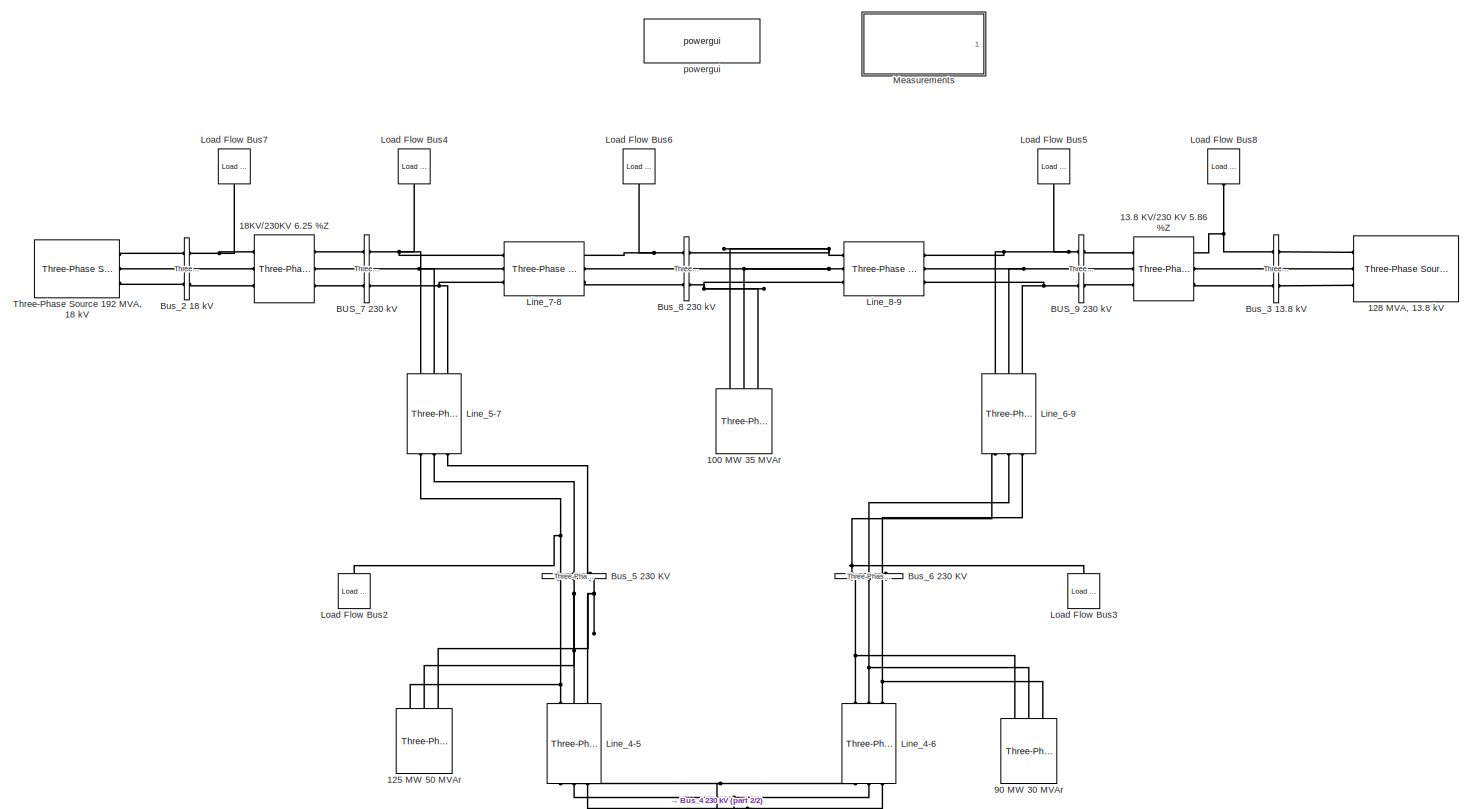
[diagram: root canvas - part 1/2, full width, middle band]
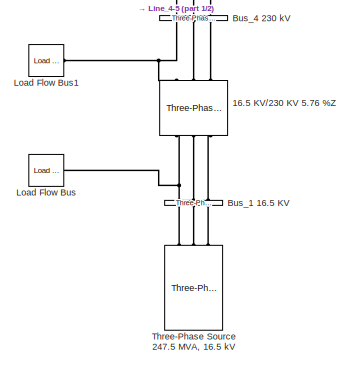
[diagram: root canvas - part 2/2, bottom center region]
MODEL slx_2a285159fcff
KIND model
CONFIG AbsTol = auto
CONFIG EnableMultiTasking = on
CONFIG FixedStep = Ts
CONFIG InitFcn = Ts=50e-6;
CONFIG MaxStep = auto
CONFIG MinStep = auto
CONFIG RelTol = 1e-3
CONFIG SampleTimeConstraint = Unconstrained
CONFIG Solver = ode3
CONFIG SolverName = ode3
CONFIG StartTime = 0.0
CONFIG StopTime = 5
BLOCK [Reference] 100 MW 35 MVAr  REF=powerlib/Elements/Three-Phase
Parallel RLC Load
  AttributesFormatString = \n
  Ports = [0, 0, 0, 0, 0, 3]
  SourceBlock = powerlib/Elements/Three-Phase\nParallel RLC Load
  SourceProductBaseCode = PS
  SourceProductName = Simscape Power Systems
  SourceType = Three-Phase Parallel RLC Load
BLOCK [Reference] 125 MW 50 MVAr  REF=powerlib/Elements/Three-Phase
Parallel RLC Load
  AttributesFormatString = \n
  Ports = [0, 0, 0, 0, 0, 3]
  SourceBlock = powerlib/Elements/Three-Phase\nParallel RLC Load
  SourceProductBaseCode = PS
  SourceProductName = Simscape Power Systems
  SourceType = Three-Phase Parallel RLC Load
BLOCK [Reference] 128 MVA, 13.8 kV  REF=powerlib/Electrical
Sources/Three-Phase Source
  Ports = [0, 0, 0, 0, 0, 0, 3]
  SourceBlock = powerlib/Electrical\nSources/Three-Phase Source
  SourceProductBaseCode = PS
  SourceProductName = Simscape Power Systems
  SourceType = Three-Phase Source
BLOCK [Reference] 13.8 KV//230 KV 5.86 %Z  REF=powerlib/Elements/Three-Phase
Transformer
(Two Windings)
  Ports = [0, 0, 0, 0, 0, 3, 3]
  SourceBlock = powerlib/Elements/Three-Phase\nTransformer\n(Two Windings)
  SourceProductBaseCode = PS
  SourceProductName = Simscape Power Systems
  SourceType = Three-Phase Transformer (Two Windings)
BLOCK [Reference] 16.5 KV//230 KV 5.76 %Z       REF=powerlib/Elements/Three-Phase
Transformer
(Two Windings)
  Ports = [0, 0, 0, 0, 0, 3, 3]
  SourceBlock = powerlib/Elements/Three-Phase\nTransformer\n(Two Windings)
  SourceProductBaseCode = PS
  SourceProductName = Simscape Power Systems
  SourceType = Three-Phase Transformer (Two Windings)
BLOCK [Reference] 18KV//230KV 6.25 %Z  REF=powerlib/Elements/Three-Phase
Transformer
(Two Windings)
  Ports = [0, 0, 0, 0, 0, 3, 3]
  SourceBlock = powerlib/Elements/Three-Phase\nTransformer\n(Two Windings)
  SourceProductBaseCode = PS
  SourceProductName = Simscape Power Systems
  SourceType = Three-Phase Transformer (Two Windings)
BLOCK [Reference] 90 MW 30 MVAr  REF=powerlib/Elements/Three-Phase
Parallel RLC Load
  AttributesFormatString = \n
  Ports = [0, 0, 0, 0, 0, 3]
  SourceBlock = powerlib/Elements/Three-Phase\nParallel RLC Load
  SourceProductBaseCode = PS
  SourceProductName = Simscape Power Systems
  SourceType = Three-Phase Parallel RLC Load
BLOCK [Reference] BUS_7 230 kV  REF=powerlib/Measurements/Three-Phase
V-I Measurement
  Ports = [0, 0, 0, 0, 0, 3, 3]
  SourceBlock = powerlib/Measurements/Three-Phase\nV-I Measurement
  SourceProductBaseCode = PS
  SourceProductName = Simscape Power Systems
  SourceType = Three-Phase VI Measurement
BLOCK [Reference] BUS_9 230 kV  REF=powerlib/Measurements/Three-Phase
V-I Measurement
  Ports = [0, 0, 0, 0, 0, 3, 3]
  SourceBlock = powerlib/Measurements/Three-Phase\nV-I Measurement
  SourceProductBaseCode = PS
  SourceProductName = Simscape Power Systems
  SourceType = Three-Phase VI Measurement
BLOCK [Reference] Bus_1 16.5 KV  REF=powerlib/Measurements/Three-Phase
V-I Measurement
  Ports = [0, 0, 0, 0, 0, 3, 3]
  SourceBlock = powerlib/Measurements/Three-Phase\nV-I Measurement
  SourceProductBaseCode = PS
  SourceProductName = Simscape Power Systems
  SourceType = Three-Phase VI Measurement
BLOCK [Reference] Bus_2 18 kV  REF=powerlib/Measurements/Three-Phase
V-I Measurement
  Ports = [0, 0, 0, 0, 0, 3, 3]
  SourceBlock = powerlib/Measurements/Three-Phase\nV-I Measurement
  SourceProductBaseCode = PS
  SourceProductName = Simscape Power Systems
  SourceType = Three-Phase VI Measurement
BLOCK [Reference] Bus_3 13.8 kV  REF=powerlib/Measurements/Three-Phase
V-I Measurement
  Ports = [0, 0, 0, 0, 0, 3, 3]
  SourceBlock = powerlib/Measurements/Three-Phase\nV-I Measurement
  SourceProductBaseCode = PS
  SourceProductName = Simscape Power Systems
  SourceType = Three-Phase VI Measurement
BLOCK [Reference] Bus_4 230 kV  REF=powerlib/Measurements/Three-Phase
V-I Measurement
  Ports = [0, 0, 0, 0, 0, 3, 3]
  SourceBlock = powerlib/Measurements/Three-Phase\nV-I Measurement
  SourceProductBaseCode = PS
  SourceProductName = Simscape Power Systems
  SourceType = Three-Phase VI Measurement
BLOCK [Reference] Bus_5 230 KV  REF=powerlib/Measurements/Three-Phase
V-I Measurement
  Ports = [0, 0, 0, 0, 0, 3, 3]
  SourceBlock = powerlib/Measurements/Three-Phase\nV-I Measurement
  SourceProductBaseCode = PS
  SourceProductName = Simscape Power Systems
  SourceType = Three-Phase VI Measurement
BLOCK [Reference] Bus_6 230 KV  REF=powerlib/Measurements/Three-Phase
V-I Measurement
  Ports = [0, 0, 0, 0, 0, 3, 3]
  SourceBlock = powerlib/Measurements/Three-Phase\nV-I Measurement
  SourceProductBaseCode = PS
  SourceProductName = Simscape Power Systems
  SourceType = Three-Phase VI Measurement
BLOCK [Reference] Bus_8 230 kV  REF=powerlib/Measurements/Three-Phase
V-I Measurement
  Ports = [0, 0, 0, 0, 0, 3, 3]
  SourceBlock = powerlib/Measurements/Three-Phase\nV-I Measurement
  SourceProductBaseCode = PS
  SourceProductName = Simscape Power Systems
  SourceType = Three-Phase VI Measurement
BLOCK [Reference] Line_4-5  REF=powerlib/Elements/Three-Phase
PI Section Line
  AttributesFormatString = \n
  Ports = [0, 0, 0, 0, 0, 3, 3]
  SourceBlock = powerlib/Elements/Three-Phase\nPI Section Line
  SourceProductBaseCode = PS
  SourceProductName = Simscape Power Systems
  SourceType = Three-Phase PI Section Line
BLOCK [Reference] Line_4-6  REF=powerlib/Elements/Three-Phase
PI Section Line
  AttributesFormatString = \n
  Ports = [0, 0, 0, 0, 0, 3, 3]
  SourceBlock = powerlib/Elements/Three-Phase\nPI Section Line
  SourceProductBaseCode = PS
  SourceProductName = Simscape Power Systems
  SourceType = Three-Phase PI Section Line
BLOCK [Reference] Line_5-7  REF=powerlib/Elements/Three-Phase
PI Section Line
  AttributesFormatString = \n
  Ports = [0, 0, 0, 0, 0, 3, 3]
  SourceBlock = powerlib/Elements/Three-Phase\nPI Section Line
  SourceProductBaseCode = PS
  SourceProductName = Simscape Power Systems
  SourceType = Three-Phase PI Section Line
BLOCK [Reference] Line_6-9  REF=powerlib/Elements/Three-Phase
PI Section Line
  AttributesFormatString = \n
  Ports = [0, 0, 0, 0, 0, 3, 3]
  SourceBlock = powerlib/Elements/Three-Phase\nPI Section Line
  SourceProductBaseCode = PS
  SourceProductName = Simscape Power Systems
  SourceType = Three-Phase PI Section Line
BLOCK [Reference] Line_7-8  REF=powerlib/Elements/Three-Phase
PI Section Line
  AttributesFormatString = \n
  Ports = [0, 0, 0, 0, 0, 3, 3]
  SourceBlock = powerlib/Elements/Three-Phase\nPI Section Line
  SourceProductBaseCode = PS
  SourceProductName = Simscape Power Systems
  SourceType = Three-Phase PI Section Line
BLOCK [Reference] Line_8-9  REF=powerlib/Elements/Three-Phase
PI Section Line
  AttributesFormatString = \n
  Ports = [0, 0, 0, 0, 0, 3, 3]
  SourceBlock = powerlib/Elements/Three-Phase\nPI Section Line
  SourceProductBaseCode = PS
  SourceProductName = Simscape Power Systems
  SourceType = Three-Phase PI Section Line
BLOCK [Reference] Load Flow Bus  REF=powerlib/Measurements/Load Flow Bus
  AttributesFormatString = %<ID>\n%<Vbase>V\n%<VLF>pu\n%<angleLF>deg.
  Ports = [0, 0, 0, 0, 0, 1]
  SourceBlock = powerlib/Measurements/Load Flow Bus
  SourceProductBaseCode = PS
  SourceProductName = Simscape Power Systems
  SourceType = Load Flow Bus
BLOCK [Reference] Load Flow Bus1  REF=powerlib/Measurements/Load Flow Bus
  AttributesFormatString = %<ID>\n%<Vbase>V\n%<VLF>pu\n%<angleLF>deg.
  Ports = [0, 0, 0, 0, 0, 1]
  SourceBlock = powerlib/Measurements/Load Flow Bus
  SourceProductBaseCode = PS
  SourceProductName = Simscape Power Systems
  SourceType = Load Flow Bus
BLOCK [Reference] Load Flow Bus2  REF=powerlib/Measurements/Load Flow Bus
  AttributesFormatString = %<ID>\n%<Vbase>V\n%<VLF>pu\n%<angleLF>deg.
  Ports = [0, 0, 0, 0, 0, 1]
  SourceBlock = powerlib/Measurements/Load Flow Bus
  SourceProductBaseCode = PS
  SourceProductName = Simscape Power Systems
  SourceType = Load Flow Bus
BLOCK [Reference] Load Flow Bus3  REF=powerlib/Measurements/Load Flow Bus
  AttributesFormatString = %<ID>\n%<Vbase>V\n%<VLF>pu\n%<angleLF>deg.
  Ports = [0, 0, 0, 0, 0, 1]
  SourceBlock = powerlib/Measurements/Load Flow Bus
  SourceProductBaseCode = PS
  SourceProductName = Simscape Power Systems
  SourceType = Load Flow Bus
BLOCK [Reference] Load Flow Bus4  REF=powerlib/Measurements/Load Flow Bus
  AttributesFormatString = %<ID>\n%<Vbase>V\n%<VLF>pu\n%<angleLF>deg.
  Ports = [0, 0, 0, 0, 0, 1]
  SourceBlock = powerlib/Measurements/Load Flow Bus
  SourceProductBaseCode = PS
  SourceProductName = Simscape Power Systems
  SourceType = Load Flow Bus
BLOCK [Reference] Load Flow Bus5  REF=powerlib/Measurements/Load Flow Bus
  AttributesFormatString = %<ID>\n%<Vbase>V\n%<VLF>pu\n%<angleLF>deg.
  Ports = [0, 0, 0, 0, 0, 1]
  SourceBlock = powerlib/Measurements/Load Flow Bus
  SourceProductBaseCode = PS
  SourceProductName = Simscape Power Systems
  SourceType = Load Flow Bus
BLOCK [Reference] Load Flow Bus6  REF=powerlib/Measurements/Load Flow Bus
  AttributesFormatString = %<ID>\n%<Vbase>V\n%<VLF>pu\n%<angleLF>deg.
  Ports = [0, 0, 0, 0, 0, 1]
  SourceBlock = powerlib/Measurements/Load Flow Bus
  SourceProductBaseCode = PS
  SourceProductName = Simscape Power Systems
  SourceType = Load Flow Bus
BLOCK [Reference] Load Flow Bus7  REF=powerlib/Measurements/Load Flow Bus
  AttributesFormatString = %<ID>\n%<Vbase>V\n%<VLF>pu\n%<angleLF>deg.
  Ports = [0, 0, 0, 0, 0, 1]
  SourceBlock = powerlib/Measurements/Load Flow Bus
  SourceProductBaseCode = PS
  SourceProductName = Simscape Power Systems
  SourceType = Load Flow Bus
BLOCK [Reference] Load Flow Bus8  REF=powerlib/Measurements/Load Flow Bus
  AttributesFormatString = %<ID>\n%<Vbase>V\n%<VLF>pu\n%<angleLF>deg.
  Ports = [0, 0, 0, 0, 0, 1]
  SourceBlock = powerlib/Measurements/Load Flow Bus
  SourceProductBaseCode = PS
  SourceProductName = Simscape Power Systems
  SourceType = Load Flow Bus
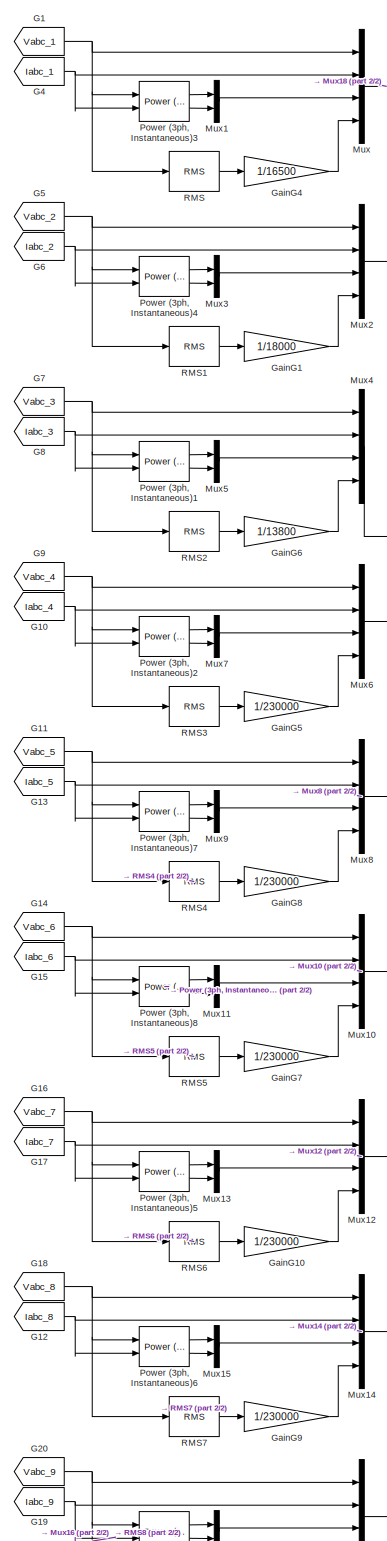
[diagram: Measurements - part 1/2, left side, full height]
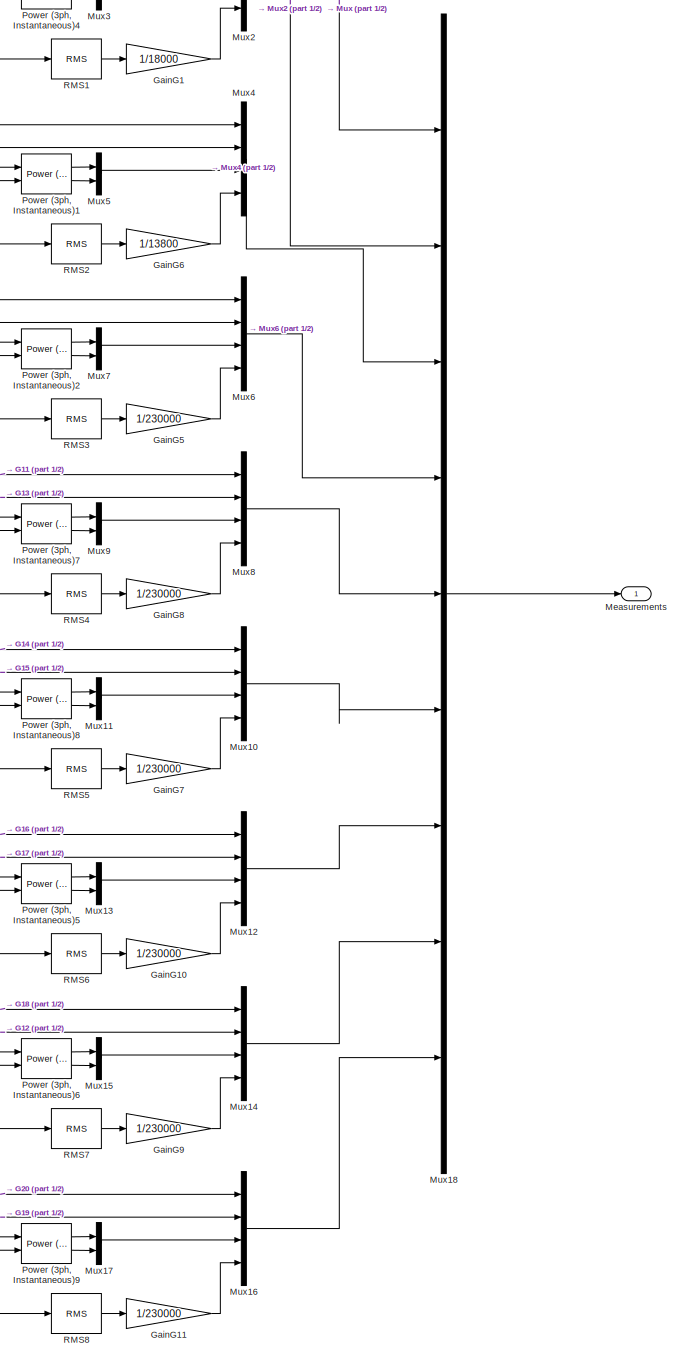
[diagram: Measurements - part 2/2, most of the canvas]
BLOCK [SubSystem] Measurements
  Ports = [0, 1]
  RequestExecContextInheritance = off
BLOCK [From] Measurements/G1
  GotoTag = Vabc_1
  TagVisibility = global
BLOCK [From] Measurements/G10
  GotoTag = Iabc_4
  TagVisibility = global
BLOCK [From] Measurements/G11
  GotoTag = Vabc_5
  TagVisibility = global
BLOCK [From] Measurements/G12
  GotoTag = Iabc_8
  TagVisibility = global
BLOCK [From] Measurements/G13
  GotoTag = Iabc_5
  TagVisibility = global
BLOCK [From] Measurements/G14
  GotoTag = Vabc_6
  TagVisibility = global
BLOCK [From] Measurements/G15
  GotoTag = Iabc_6
  TagVisibility = global
BLOCK [From] Measurements/G16
  GotoTag = Vabc_7
  TagVisibility = global
BLOCK [From] Measurements/G17
  GotoTag = Iabc_7
  TagVisibility = global
BLOCK [From] Measurements/G18
  GotoTag = Vabc_8
  TagVisibility = global
BLOCK [From] Measurements/G19
  GotoTag = Iabc_9
  TagVisibility = global
BLOCK [From] Measurements/G20
  GotoTag = Vabc_9
  TagVisibility = global
BLOCK [From] Measurements/G4
  GotoTag = Iabc_1
  TagVisibility = global
BLOCK [From] Measurements/G5
  GotoTag = Vabc_2
  TagVisibility = global
BLOCK [From] Measurements/G6
  GotoTag = Iabc_2
  TagVisibility = global
BLOCK [From] Measurements/G7
  GotoTag = Vabc_3
  TagVisibility = global
BLOCK [From] Measurements/G8
  GotoTag = Iabc_3
  TagVisibility = global
BLOCK [From] Measurements/G9
  GotoTag = Vabc_4
  TagVisibility = global
BLOCK [Gain] Measurements/GainG1
  Gain = 1/18000
  OutDataTypeStr = Inherit: Inherit via internal rule
  ParamDataTypeStr = Inherit: Inherit via internal rule
  SaturateOnIntegerOverflow = off
BLOCK [Gain] Measurements/GainG10
  Gain = 1/230000
  OutDataTypeStr = Inherit: Inherit via internal rule
  ParamDataTypeStr = Inherit: Inherit via internal rule
  SaturateOnIntegerOverflow = off
BLOCK [Gain] Measurements/GainG11
  Gain = 1/230000
  OutDataTypeStr = Inherit: Inherit via internal rule
  ParamDataTypeStr = Inherit: Inherit via internal rule
  SaturateOnIntegerOverflow = off
BLOCK [Gain] Measurements/GainG4
  Gain = 1/16500
  OutDataTypeStr = Inherit: Inherit via internal rule
  ParamDataTypeStr = Inherit: Inherit via internal rule
  SaturateOnIntegerOverflow = off
BLOCK [Gain] Measurements/GainG5
  Gain = 1/230000
  OutDataTypeStr = Inherit: Inherit via internal rule
  ParamDataTypeStr = Inherit: Inherit via internal rule
  SaturateOnIntegerOverflow = off
BLOCK [Gain] Measurements/GainG6
  Gain = 1/13800
  OutDataTypeStr = Inherit: Inherit via internal rule
  ParamDataTypeStr = Inherit: Inherit via internal rule
  SaturateOnIntegerOverflow = off
BLOCK [Gain] Measurements/GainG7
  Gain = 1/230000
  OutDataTypeStr = Inherit: Inherit via internal rule
  ParamDataTypeStr = Inherit: Inherit via internal rule
  SaturateOnIntegerOverflow = off
BLOCK [Gain] Measurements/GainG8
  Gain = 1/230000
  OutDataTypeStr = Inherit: Inherit via internal rule
  ParamDataTypeStr = Inherit: Inherit via internal rule
  SaturateOnIntegerOverflow = off
BLOCK [Gain] Measurements/GainG9
  Gain = 1/230000
  OutDataTypeStr = Inherit: Inherit via internal rule
  ParamDataTypeStr = Inherit: Inherit via internal rule
  SaturateOnIntegerOverflow = off
BLOCK [Outport] Measurements/Measurements
  IconDisplay = Port number
BLOCK [Mux] Measurements/Mux
  DisplayOption = bar
  Ports = [4, 1]
BLOCK [Mux] Measurements/Mux1
  DisplayOption = bar
  Inputs = 2
  Ports = [2, 1]
BLOCK [Mux] Measurements/Mux10
  DisplayOption = bar
  Ports = [4, 1]
BLOCK [Mux] Measurements/Mux11
  DisplayOption = bar
  Inputs = 2
  Ports = [2, 1]
BLOCK [Mux] Measurements/Mux12
  DisplayOption = bar
  Ports = [4, 1]
BLOCK [Mux] Measurements/Mux13
  DisplayOption = bar
  Inputs = 2
  Ports = [2, 1]
BLOCK [Mux] Measurements/Mux14
  DisplayOption = bar
  Ports = [4, 1]
BLOCK [Mux] Measurements/Mux15
  DisplayOption = bar
  Inputs = 2
  Ports = [2, 1]
BLOCK [Mux] Measurements/Mux16
  DisplayOption = bar
  Ports = [4, 1]
BLOCK [Mux] Measurements/Mux17
  DisplayOption = bar
  Inputs = 2
  Ports = [2, 1]
BLOCK [Mux] Measurements/Mux18
  DisplayOption = bar
  Inputs = 9
  Ports = [9, 1]
BLOCK [Mux] Measurements/Mux2
  DisplayOption = bar
  Ports = [4, 1]
BLOCK [Mux] Measurements/Mux3
  DisplayOption = bar
  Inputs = 2
  Ports = [2, 1]
BLOCK [Mux] Measurements/Mux4
  DisplayOption = bar
  Ports = [4, 1]
BLOCK [Mux] Measurements/Mux5
  DisplayOption = bar
  Inputs = 2
  Ports = [2, 1]
BLOCK [Mux] Measurements/Mux6
  DisplayOption = bar
  Ports = [4, 1]
BLOCK [Mux] Measurements/Mux7
  DisplayOption = bar
  Inputs = 2
  Ports = [2, 1]
BLOCK [Mux] Measurements/Mux8
  DisplayOption = bar
  Ports = [4, 1]
BLOCK [Mux] Measurements/Mux9
  DisplayOption = bar
  Inputs = 2
  Ports = [2, 1]
BLOCK [Reference] Measurements/Power (3ph, Instantaneous)1  REF=powerlib_meascontrol/Measurements/Power
(3ph, Instantaneous)
  Ports = [2, 2]
  SourceBlock = powerlib_meascontrol/Measurements/Power\n(3ph, Instantaneous)
  SourceProductBaseCode = PS
  SourceProductName = Simscape Power Systems
  SourceType = Power (3ph, Instantaneous)
BLOCK [Reference] Measurements/Power (3ph, Instantaneous)2  REF=powerlib_meascontrol/Measurements/Power
(3ph, Instantaneous)
  Ports = [2, 2]
  SourceBlock = powerlib_meascontrol/Measurements/Power\n(3ph, Instantaneous)
  SourceProductBaseCode = PS
  SourceProductName = Simscape Power Systems
  SourceType = Power (3ph, Instantaneous)
BLOCK [Reference] Measurements/Power (3ph, Instantaneous)3  REF=powerlib_meascontrol/Measurements/Power
(3ph, Instantaneous)
  Ports = [2, 2]
  SourceBlock = powerlib_meascontrol/Measurements/Power\n(3ph, Instantaneous)
  SourceProductBaseCode = PS
  SourceProductName = Simscape Power Systems
  SourceType = Power (3ph, Instantaneous)
BLOCK [Reference] Measurements/Power (3ph, Instantaneous)4  REF=powerlib_meascontrol/Measurements/Power
(3ph, Instantaneous)
  Ports = [2, 2]
  SourceBlock = powerlib_meascontrol/Measurements/Power\n(3ph, Instantaneous)
  SourceProductBaseCode = PS
  SourceProductName = Simscape Power Systems
  SourceType = Power (3ph, Instantaneous)
BLOCK [Reference] Measurements/Power (3ph, Instantaneous)5  REF=powerlib_meascontrol/Measurements/Power
(3ph, Instantaneous)
  Ports = [2, 2]
  SourceBlock = powerlib_meascontrol/Measurements/Power\n(3ph, Instantaneous)
  SourceProductBaseCode = PS
  SourceProductName = Simscape Power Systems
  SourceType = Power (3ph, Instantaneous)
BLOCK [Reference] Measurements/Power (3ph, Instantaneous)6  REF=powerlib_meascontrol/Measurements/Power
(3ph, Instantaneous)
  Ports = [2, 2]
  SourceBlock = powerlib_meascontrol/Measurements/Power\n(3ph, Instantaneous)
  SourceProductBaseCode = PS
  SourceProductName = Simscape Power Systems
  SourceType = Power (3ph, Instantaneous)
BLOCK [Reference] Measurements/Power (3ph, Instantaneous)7  REF=powerlib_meascontrol/Measurements/Power
(3ph, Instantaneous)
  Ports = [2, 2]
  SourceBlock = powerlib_meascontrol/Measurements/Power\n(3ph, Instantaneous)
  SourceProductBaseCode = PS
  SourceProductName = Simscape Power Systems
  SourceType = Power (3ph, Instantaneous)
BLOCK [Reference] Measurements/Power (3ph, Instantaneous)8  REF=powerlib_meascontrol/Measurements/Power
(3ph, Instantaneous)
  Ports = [2, 2]
  SourceBlock = powerlib_meascontrol/Measurements/Power\n(3ph, Instantaneous)
  SourceProductBaseCode = PS
  SourceProductName = Simscape Power Systems
  SourceType = Power (3ph, Instantaneous)
BLOCK [Reference] Measurements/Power (3ph, Instantaneous)9  REF=powerlib_meascontrol/Measurements/Power
(3ph, Instantaneous)
  Ports = [2, 2]
  SourceBlock = powerlib_meascontrol/Measurements/Power\n(3ph, Instantaneous)
  SourceProductBaseCode = PS
  SourceProductName = Simscape Power Systems
  SourceType = Power (3ph, Instantaneous)
BLOCK [Reference] Measurements/RMS  REF=powerlib_meascontrol/Measurements/RMS
  Ports = [1, 1]
  SourceBlock = powerlib_meascontrol/Measurements/RMS
  SourceProductBaseCode = PS
  SourceProductName = Simscape Power Systems
  SourceType = RMS
BLOCK [Reference] Measurements/RMS1  REF=powerlib_meascontrol/Measurements/RMS
  Ports = [1, 1]
  SourceBlock = powerlib_meascontrol/Measurements/RMS
  SourceProductBaseCode = PS
  SourceProductName = Simscape Power Systems
  SourceType = RMS
BLOCK [Reference] Measurements/RMS2  REF=powerlib_meascontrol/Measurements/RMS
  Ports = [1, 1]
  SourceBlock = powerlib_meascontrol/Measurements/RMS
  SourceProductBaseCode = PS
  SourceProductName = Simscape Power Systems
  SourceType = RMS
BLOCK [Reference] Measurements/RMS3  REF=powerlib_meascontrol/Measurements/RMS
  Ports = [1, 1]
  SourceBlock = powerlib_meascontrol/Measurements/RMS
  SourceProductBaseCode = PS
  SourceProductName = Simscape Power Systems
  SourceType = RMS
BLOCK [Reference] Measurements/RMS4  REF=powerlib_meascontrol/Measurements/RMS
  Ports = [1, 1]
  SourceBlock = powerlib_meascontrol/Measurements/RMS
  SourceProductBaseCode = PS
  SourceProductName = Simscape Power Systems
  SourceType = RMS
BLOCK [Reference] Measurements/RMS5  REF=powerlib_meascontrol/Measurements/RMS
  Ports = [1, 1]
  SourceBlock = powerlib_meascontrol/Measurements/RMS
  SourceProductBaseCode = PS
  SourceProductName = Simscape Power Systems
  SourceType = RMS
BLOCK [Reference] Measurements/RMS6  REF=powerlib_meascontrol/Measurements/RMS
  Ports = [1, 1]
  SourceBlock = powerlib_meascontrol/Measurements/RMS
  SourceProductBaseCode = PS
  SourceProductName = Simscape Power Systems
  SourceType = RMS
BLOCK [Reference] Measurements/RMS7  REF=powerlib_meascontrol/Measurements/RMS
  Ports = [1, 1]
  SourceBlock = powerlib_meascontrol/Measurements/RMS
  SourceProductBaseCode = PS
  SourceProductName = Simscape Power Systems
  SourceType = RMS
BLOCK [Reference] Measurements/RMS8  REF=powerlib_meascontrol/Measurements/RMS
  Ports = [1, 1]
  SourceBlock = powerlib_meascontrol/Measurements/RMS
  SourceProductBaseCode = PS
  SourceProductName = Simscape Power Systems
  SourceType = RMS
BLOCK [Reference] Three-Phase Source 192 MVA, 18 kV  REF=powerlib/Electrical
Sources/Three-Phase Source
  Ports = [0, 0, 0, 0, 0, 0, 3]
  SourceBlock = powerlib/Electrical\nSources/Three-Phase Source
  SourceProductBaseCode = PS
  SourceProductName = Simscape Power Systems
  SourceType = Three-Phase Source
BLOCK [Reference] Three-Phase Source 247.5 MVA, 16.5 kV  REF=powerlib/Electrical
Sources/Three-Phase Source
  Ports = [0, 0, 0, 0, 0, 0, 3]
  SourceBlock = powerlib/Electrical\nSources/Three-Phase Source
  SourceProductBaseCode = PS
  SourceProductName = Simscape Power Systems
  SourceType = Three-Phase Source
BLOCK [Reference] powergui  REF=powerlib/powergui
  Ports = []
  Priority = 1
  SourceBlock = powerlib/powergui
  SourceProductBaseCode = PS
  SourceProductName = Simscape Power Systems
  SourceType = PSB option menu block
NET Measurements/G10:1 -> Measurements/Mux6:2, Measurements/Power (3ph, Instantaneous)2:2
NET Measurements/G11:1 -> Measurements/Mux8:1, Measurements/Power (3ph, Instantaneous)7:1, Measurements/RMS4:1
NET Measurements/G12:1 -> Measurements/Mux14:2, Measurements/Power (3ph, Instantaneous)6:2
NET Measurements/G13:1 -> Measurements/Mux8:2, Measurements/Power (3ph, Instantaneous)7:2
NET Measurements/G14:1 -> Measurements/Mux10:1, Measurements/Power (3ph, Instantaneous)8:1, Measurements/RMS5:1
NET Measurements/G15:1 -> Measurements/Mux10:2, Measurements/Power (3ph, Instantaneous)8:2
NET Measurements/G16:1 -> Measurements/Mux12:1, Measurements/Power (3ph, Instantaneous)5:1, Measurements/RMS6:1
NET Measurements/G17:1 -> Measurements/Mux12:2, Measurements/Power (3ph, Instantaneous)5:2
NET Measurements/G18:1 -> Measurements/Mux14:1, Measurements/Power (3ph, Instantaneous)6:1, Measurements/RMS7:1
NET Measurements/G19:1 -> Measurements/Mux16:2, Measurements/Power (3ph, Instantaneous)9:2
NET Measurements/G1:1 -> Measurements/Mux:1, Measurements/Power (3ph, Instantaneous)3:1, Measurements/RMS:1
NET Measurements/G20:1 -> Measurements/Mux16:1, Measurements/Power (3ph, Instantaneous)9:1, Measurements/RMS8:1
NET Measurements/G4:1 -> Measurements/Mux:2, Measurements/Power (3ph, Instantaneous)3:2
NET Measurements/G5:1 -> Measurements/Mux2:1, Measurements/Power (3ph, Instantaneous)4:1, Measurements/RMS1:1
NET Measurements/G6:1 -> Measurements/Mux2:2, Measurements/Power (3ph, Instantaneous)4:2
NET Measurements/G7:1 -> Measurements/Mux4:1, Measurements/Power (3ph, Instantaneous)1:1, Measurements/RMS2:1
NET Measurements/G8:1 -> Measurements/Mux4:2, Measurements/Power (3ph, Instantaneous)1:2
NET Measurements/G9:1 -> Measurements/Mux6:1, Measurements/Power (3ph, Instantaneous)2:1, Measurements/RMS3:1
LINE Measurements/GainG10:1 -> Measurements/Mux12:4
LINE Measurements/GainG11:1 -> Measurements/Mux16:4
LINE Measurements/GainG1:1 -> Measurements/Mux2:4
LINE Measurements/GainG4:1 -> Measurements/Mux:4
LINE Measurements/GainG5:1 -> Measurements/Mux6:4
LINE Measurements/GainG6:1 -> Measurements/Mux4:4
LINE Measurements/GainG7:1 -> Measurements/Mux10:4
LINE Measurements/GainG8:1 -> Measurements/Mux8:4
LINE Measurements/GainG9:1 -> Measurements/Mux14:4
LINE Measurements/Mux10:1 -> Measurements/Mux18:6
LINE Measurements/Mux11:1 -> Measurements/Mux10:3
LINE Measurements/Mux12:1 -> Measurements/Mux18:7
LINE Measurements/Mux13:1 -> Measurements/Mux12:3
LINE Measurements/Mux14:1 -> Measurements/Mux18:8
LINE Measurements/Mux15:1 -> Measurements/Mux14:3
LINE Measurements/Mux16:1 -> Measurements/Mux18:9
LINE Measurements/Mux17:1 -> Measurements/Mux16:3
LINE Measurements/Mux18:1 -> Measurements/Measurements:1
LINE Measurements/Mux1:1 -> Measurements/Mux:3
LINE Measurements/Mux2:1 -> Measurements/Mux18:2
LINE Measurements/Mux3:1 -> Measurements/Mux2:3
LINE Measurements/Mux4:1 -> Measurements/Mux18:3
LINE Measurements/Mux5:1 -> Measurements/Mux4:3
LINE Measurements/Mux6:1 -> Measurements/Mux18:4
LINE Measurements/Mux7:1 -> Measurements/Mux6:3
LINE Measurements/Mux8:1 -> Measurements/Mux18:5
LINE Measurements/Mux9:1 -> Measurements/Mux8:3
LINE Measurements/Mux:1 -> Measurements/Mux18:1
LINE Measurements/Power (3ph, Instantaneous)1:1 -> Measurements/Mux5:1
LINE Measurements/Power (3ph, Instantaneous)1:2 -> Measurements/Mux5:2
LINE Measurements/Power (3ph, Instantaneous)2:1 -> Measurements/Mux7:1
LINE Measurements/Power (3ph, Instantaneous)2:2 -> Measurements/Mux7:2
LINE Measurements/Power (3ph, Instantaneous)3:1 -> Measurements/Mux1:1
LINE Measurements/Power (3ph, Instantaneous)3:2 -> Measurements/Mux1:2
LINE Measurements/Power (3ph, Instantaneous)4:1 -> Measurements/Mux3:1
LINE Measurements/Power (3ph, Instantaneous)4:2 -> Measurements/Mux3:2
LINE Measurements/Power (3ph, Instantaneous)5:1 -> Measurements/Mux13:1
LINE Measurements/Power (3ph, Instantaneous)5:2 -> Measurements/Mux13:2
LINE Measurements/Power (3ph, Instantaneous)6:1 -> Measurements/Mux15:1
LINE Measurements/Power (3ph, Instantaneous)6:2 -> Measurements/Mux15:2
LINE Measurements/Power (3ph, Instantaneous)7:1 -> Measurements/Mux9:1
LINE Measurements/Power (3ph, Instantaneous)7:2 -> Measurements/Mux9:2
LINE Measurements/Power (3ph, Instantaneous)8:1 -> Measurements/Mux11:1
LINE Measurements/Power (3ph, Instantaneous)8:2 -> Measurements/Mux11:2
LINE Measurements/Power (3ph, Instantaneous)9:1 -> Measurements/Mux17:1
LINE Measurements/Power (3ph, Instantaneous)9:2 -> Measurements/Mux17:2
LINE Measurements/RMS1:1 -> Measurements/GainG1:1
LINE Measurements/RMS2:1 -> Measurements/GainG6:1
LINE Measurements/RMS3:1 -> Measurements/GainG5:1
LINE Measurements/RMS4:1 -> Measurements/GainG8:1
LINE Measurements/RMS5:1 -> Measurements/GainG7:1
LINE Measurements/RMS6:1 -> Measurements/GainG10:1
LINE Measurements/RMS7:1 -> Measurements/GainG9:1
LINE Measurements/RMS8:1 -> Measurements/GainG11:1
LINE Measurements/RMS:1 -> Measurements/GainG4:1
PNET net1: 100 MW 35 MVAr:LConn1 -- Bus_8 230 kV:LConn1 -- Line_8-9:LConn1
PNET net2: 100 MW 35 MVAr:LConn2 -- Bus_8 230 kV:LConn2 -- Line_8-9:LConn2
PNET net3: 100 MW 35 MVAr:LConn3 -- Bus_8 230 kV:LConn3 -- Line_8-9:LConn3
PNET net4: 125 MW 50 MVAr:LConn1 -- Bus_5 230 KV:RConn1 -- Line_4-5:RConn1
PNET net5: 125 MW 50 MVAr:LConn2 -- Bus_5 230 KV:RConn2 -- Line_4-5:RConn2
PNET net6: 125 MW 50 MVAr:LConn3 -- Bus_5 230 KV:RConn3 -- Line_4-5:RConn3
PLINE 128 MVA, 13.8 kV:RConn1 -- Bus_3 13.8 kV:RConn1
PLINE 128 MVA, 13.8 kV:RConn2 -- Bus_3 13.8 kV:RConn2
PLINE 128 MVA, 13.8 kV:RConn3 -- Bus_3 13.8 kV:RConn3
PNET net7: 13.8 KV//230 KV 5.86 %Z:LConn1 -- Bus_3 13.8 kV:LConn1 -- Load Flow Bus8:LConn1
PLINE 13.8 KV//230 KV 5.86 %Z:LConn2 -- Bus_3 13.8 kV:LConn2
PLINE 13.8 KV//230 KV 5.86 %Z:LConn3 -- Bus_3 13.8 kV:LConn3
PLINE 13.8 KV//230 KV 5.86 %Z:RConn1 -- BUS_9 230 kV:RConn1
PLINE 13.8 KV//230 KV 5.86 %Z:RConn2 -- BUS_9 230 kV:RConn2
PLINE 13.8 KV//230 KV 5.86 %Z:RConn3 -- BUS_9 230 kV:RConn3
PNET net8: 16.5 KV//230 KV 5.76 %Z     :LConn1 -- Bus_1 16.5 KV:LConn1 -- Load Flow Bus:LConn1
PLINE 16.5 KV//230 KV 5.76 %Z     :LConn2 -- Bus_1 16.5 KV:LConn2
PLINE 16.5 KV//230 KV 5.76 %Z     :LConn3 -- Bus_1 16.5 KV:LConn3
PNET net9: 16.5 KV//230 KV 5.76 %Z     :RConn1 -- Bus_4 230 kV:RConn1 -- Load Flow Bus1:LConn1
PLINE 16.5 KV//230 KV 5.76 %Z     :RConn2 -- Bus_4 230 kV:RConn2
PLINE 16.5 KV//230 KV 5.76 %Z     :RConn3 -- Bus_4 230 kV:RConn3
PNET net10: 18KV//230KV 6.25 %Z:LConn1 -- Bus_2 18 kV:RConn1 -- Load Flow Bus7:LConn1
PLINE 18KV//230KV 6.25 %Z:LConn2 -- Bus_2 18 kV:RConn2
PLINE 18KV//230KV 6.25 %Z:LConn3 -- Bus_2 18 kV:RConn3
PLINE 18KV//230KV 6.25 %Z:RConn1 -- BUS_7 230 kV:LConn1
PLINE 18KV//230KV 6.25 %Z:RConn2 -- BUS_7 230 kV:LConn2
PLINE 18KV//230KV 6.25 %Z:RConn3 -- BUS_7 230 kV:LConn3
PNET net11: 90 MW 30 MVAr:LConn1 -- Bus_6 230 KV:RConn1 -- Line_4-6:RConn1
PNET net12: 90 MW 30 MVAr:LConn2 -- Bus_6 230 KV:RConn2 -- Line_4-6:RConn2
PNET net13: 90 MW 30 MVAr:LConn3 -- Bus_6 230 KV:RConn3 -- Line_4-6:RConn3
PNET net14: BUS_7 230 kV:RConn1 -- Line_5-7:RConn1 -- Line_7-8:LConn1 -- Load Flow Bus4:LConn1
PNET net15: BUS_7 230 kV:RConn2 -- Line_5-7:RConn2 -- Line_7-8:LConn2
PNET net16: BUS_7 230 kV:RConn3 -- Line_5-7:RConn3 -- Line_7-8:LConn3
PNET net17: BUS_9 230 kV:LConn1 -- Line_6-9:RConn1 -- Line_8-9:RConn1 -- Load Flow Bus5:LConn1
PNET net18: BUS_9 230 kV:LConn2 -- Line_6-9:RConn2 -- Line_8-9:RConn2
PNET net19: BUS_9 230 kV:LConn3 -- Line_6-9:RConn3 -- Line_8-9:RConn3
PLINE Bus_1 16.5 KV:RConn1 -- Three-Phase Source 247.5 MVA, 16.5 kV:RConn1
PLINE Bus_1 16.5 KV:RConn2 -- Three-Phase Source 247.5 MVA, 16.5 kV:RConn2
PLINE Bus_1 16.5 KV:RConn3 -- Three-Phase Source 247.5 MVA, 16.5 kV:RConn3
PLINE Bus_2 18 kV:LConn1 -- Three-Phase Source 192 MVA, 18 kV:RConn1
PLINE Bus_2 18 kV:LConn2 -- Three-Phase Source 192 MVA, 18 kV:RConn2
PLINE Bus_2 18 kV:LConn3 -- Three-Phase Source 192 MVA, 18 kV:RConn3
PNET net20: Bus_4 230 kV:LConn1 -- Line_4-5:LConn1 -- Line_4-6:LConn1
PNET net21: Bus_4 230 kV:LConn2 -- Line_4-5:LConn2 -- Line_4-6:LConn2
PNET net22: Bus_4 230 kV:LConn3 -- Line_4-5:LConn3 -- Line_4-6:LConn3
PNET net23: Bus_5 230 KV:LConn1 -- Line_5-7:LConn1 -- Load Flow Bus2:LConn1
PLINE Bus_5 230 KV:LConn2 -- Line_5-7:LConn2
PLINE Bus_5 230 KV:LConn3 -- Line_5-7:LConn3
PNET net24: Bus_6 230 KV:LConn1 -- Line_6-9:LConn1 -- Load Flow Bus3:LConn1
PLINE Bus_6 230 KV:LConn2 -- Line_6-9:LConn2
PLINE Bus_6 230 KV:LConn3 -- Line_6-9:LConn3
PNET net25: Bus_8 230 kV:RConn1 -- Line_7-8:RConn1 -- Load Flow Bus6:LConn1
PLINE Bus_8 230 kV:RConn2 -- Line_7-8:RConn2
PLINE Bus_8 230 kV:RConn3 -- Line_7-8:RConn3
note: NET lines group one-source signal fan-out (src -> all destinations, sorted); 1:1 wires keep LINE; PNET lines group multi-terminal physical nets as a canonical sorted terminal list (undirected conserving connections); 2-terminal nets keep the pairwise PLINE form
